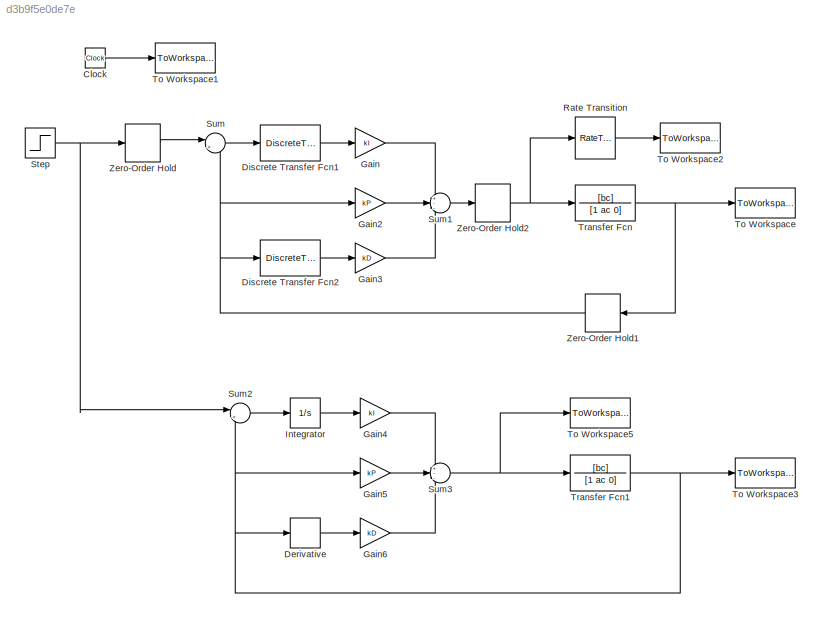
MODEL slx_d3b9f5e0de7e
KIND model
BLOCK [Clock] Clock
BLOCK [Derivative] Derivative
BLOCK [DiscreteTransferFcn] Discrete Transfer Fcn1
  Denominator = [2 -2]
  InputPortMap = u0
  Numerator = [ts ts]
  Ports = [1, 1]
  SampleTime = ts
BLOCK [DiscreteTransferFcn] Discrete Transfer Fcn2
  Denominator = [ts ts]
  InputPortMap = u0
  Numerator = [2 -2]
  Ports = [1, 1]
  SampleTime = ts
BLOCK [Gain] Gain
  Gain = kI
  OutDataTypeStr = Inherit: Inherit via internal rule
  ParamDataTypeStr = Inherit: Inherit via internal rule
  SaturateOnIntegerOverflow = off
BLOCK [Gain] Gain2
  Gain = kP
  OutDataTypeStr = Inherit: Inherit via internal rule
  ParamDataTypeStr = Inherit: Inherit via internal rule
  SaturateOnIntegerOverflow = off
BLOCK [Gain] Gain3
  Gain = kD
  OutDataTypeStr = Inherit: Inherit via internal rule
  ParamDataTypeStr = Inherit: Inherit via internal rule
  SaturateOnIntegerOverflow = off
BLOCK [Gain] Gain4
  Gain = kI
  OutDataTypeStr = Inherit: Inherit via internal rule
  ParamDataTypeStr = Inherit: Inherit via internal rule
  SaturateOnIntegerOverflow = off
BLOCK [Gain] Gain5
  Gain = kP
  OutDataTypeStr = Inherit: Inherit via internal rule
  ParamDataTypeStr = Inherit: Inherit via internal rule
  SaturateOnIntegerOverflow = off
BLOCK [Gain] Gain6
  Gain = kD
  OutDataTypeStr = Inherit: Inherit via internal rule
  ParamDataTypeStr = Inherit: Inherit via internal rule
  SaturateOnIntegerOverflow = off
BLOCK [Integrator] Integrator
  Ports = [1, 1]
BLOCK [RateTransition] Rate Transition
  OutPortSampleTime = t_sim
BLOCK [Step] Step
  After = 0.1
  SampleTime = 0
  Time = 0
BLOCK [Sum] Sum
  IconShape = round
  InputSameDT = off
  Inputs = |+-
  OutDataTypeStr = Inherit: Inherit via internal rule
  Ports = [2, 1]
  SaturateOnIntegerOverflow = off
BLOCK [Sum] Sum1
  IconShape = round
  InputSameDT = off
  Inputs = +--
  OutDataTypeStr = Inherit: Inherit via internal rule
  Ports = [3, 1]
  SaturateOnIntegerOverflow = off
BLOCK [Sum] Sum2
  IconShape = round
  InputSameDT = off
  Inputs = |+-
  OutDataTypeStr = Inherit: Inherit via internal rule
  Ports = [2, 1]
  SaturateOnIntegerOverflow = off
BLOCK [Sum] Sum3
  IconShape = round
  InputSameDT = off
  Inputs = +--
  OutDataTypeStr = Inherit: Inherit via internal rule
  Ports = [3, 1]
  SaturateOnIntegerOverflow = off
BLOCK [ToWorkspace] To Workspace
  MaxDataPoints = inf
  Ports = [1]
  SampleTime = -1
  VariableName = y
BLOCK [ToWorkspace] To Workspace1
  MaxDataPoints = inf
  Ports = [1]
  SampleTime = -1
  VariableName = t
BLOCK [ToWorkspace] To Workspace2
  MaxDataPoints = inf
  Ports = [1]
  SampleTime = -1
  VariableName = u
BLOCK [ToWorkspace] To Workspace3
  MaxDataPoints = inf
  Ports = [1]
  SampleTime = -1
  VariableName = yc
BLOCK [ToWorkspace] To Workspace5
  MaxDataPoints = inf
  Ports = [1]
  SampleTime = -1
  VariableName = uc
BLOCK [TransferFcn] Transfer Fcn
  Denominator = [1 ac 0]
  Numerator = [bc]
BLOCK [TransferFcn] Transfer Fcn1
  Denominator = [1 ac 0]
  Numerator = [bc]
BLOCK [ZeroOrderHold] Zero-Order Hold
  SampleTime = ts
BLOCK [ZeroOrderHold] Zero-Order Hold1
  SampleTime = ts
BLOCK [ZeroOrderHold] Zero-Order Hold2
  SampleTime = ts
LINE Clock:1 -> To Workspace1:1
LINE Derivative:1 -> Gain6:1
LINE Discrete Transfer Fcn1:1 -> Gain:1
LINE Discrete Transfer Fcn2:1 -> Gain3:1
LINE Gain2:1 -> Sum1:2
LINE Gain3:1 -> Sum1:3
LINE Gain4:1 -> Sum3:1
LINE Gain5:1 -> Sum3:2
LINE Gain6:1 -> Sum3:3
LINE Gain:1 -> Sum1:1
LINE Integrator:1 -> Gain4:1
LINE Rate Transition:1 -> To Workspace2:1
NET Step:1 -> Sum2:1, Zero-Order Hold:1
LINE Sum1:1 -> Zero-Order Hold2:1
LINE Sum2:1 -> Integrator:1
NET Sum3:1 -> To Workspace5:1, Transfer Fcn1:1
LINE Sum:1 -> Discrete Transfer Fcn1:1
NET Transfer Fcn1:1 -> Derivative:1, Gain5:1, Sum2:2, To Workspace3:1
NET Transfer Fcn:1 -> To Workspace:1, Zero-Order Hold1:1
NET Zero-Order Hold1:1 -> Discrete Transfer Fcn2:1, Gain2:1, Sum:2
NET Zero-Order Hold2:1 -> Rate Transition:1, Transfer Fcn:1
LINE Zero-Order Hold:1 -> Sum:1
note: NET lines group one-source signal fan-out (src -> all destinations, sorted); 1:1 wires keep LINE
